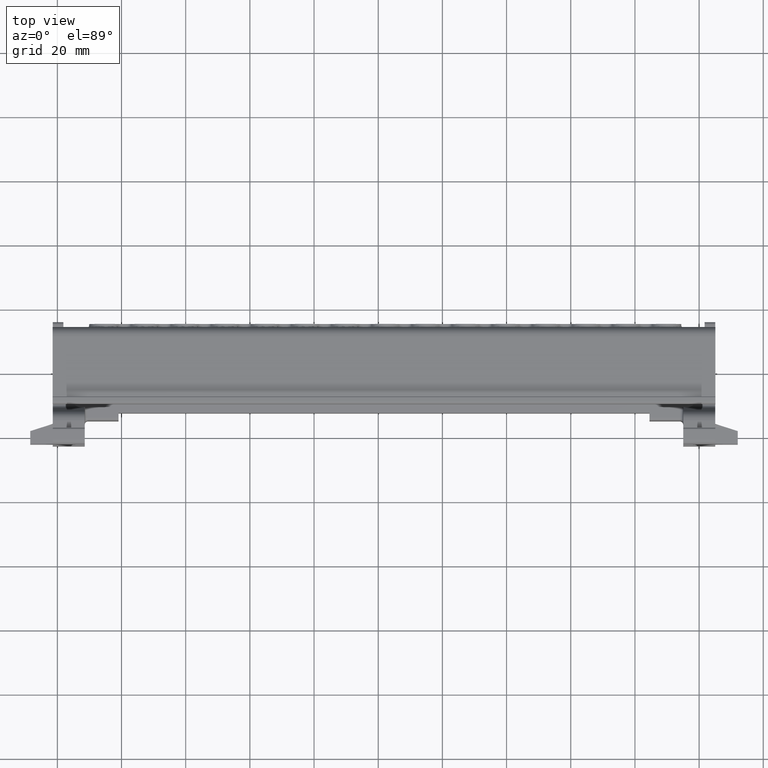
[diagram: clean part render]
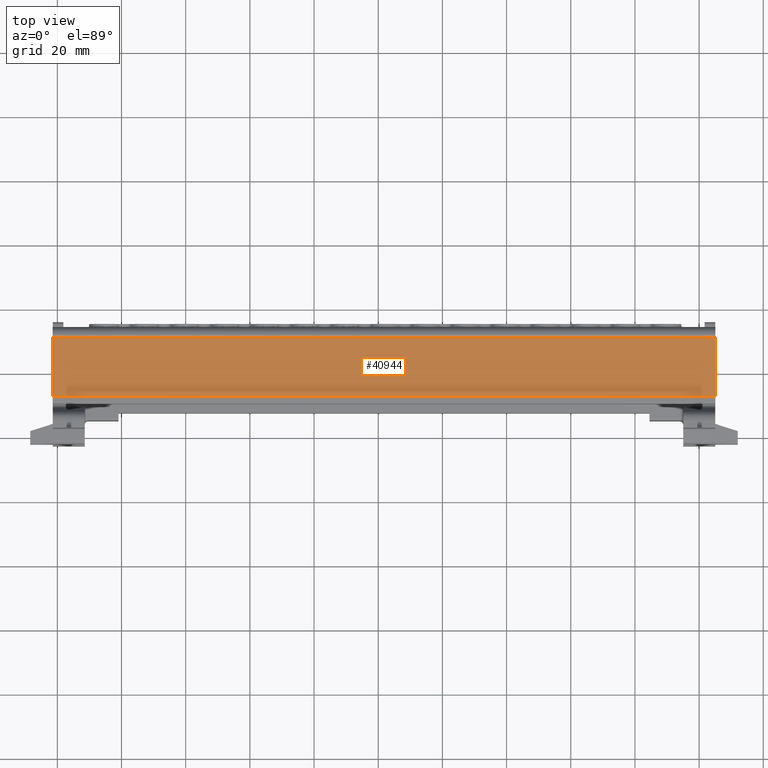
[diagram: same view with one face highlighted and labeled with its STEP entity id]
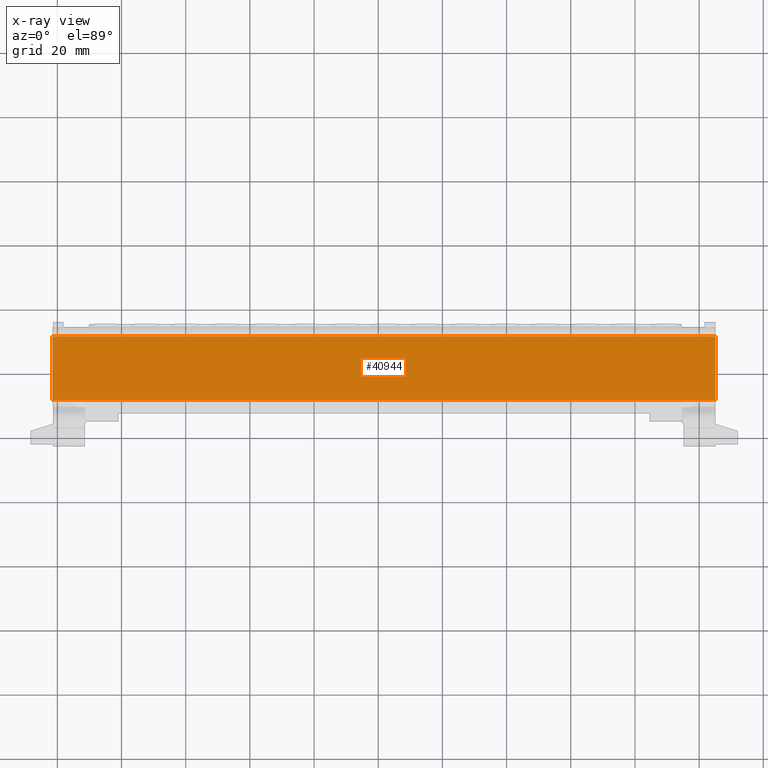
[diagram: x-ray of the same camera — body ghosted, the highlighted face saturated]
A machine part, top view. The second image highlights one B-rep face of the part: STEP entity #40944.
The next image is the same camera in x-ray: the body ghosted, the highlighted face saturated — about 0% of this face is hidden behind the body in this view.
In plain terms, the highlighted planar face has unit normal (-0, 0.0175, 0.9998).
Its self-contained STEP definition (entity closure, byte-faithful):
#1567 = VECTOR ( 'NONE', #36376, 1000.000000000000000 ) ;
#1578 = CARTESIAN_POINT ( 'NONE',  ( -121.2823042266779936, 71.26595597400199722, 47.07021635436680640 ) ) ;
#1595 = CARTESIAN_POINT ( 'NONE',  ( -121.2823042268895932, 62.90630485380530246, 47.21612950062409908 ) ) ;
#6143 = ORIENTED_EDGE ( 'NONE', *, *, #13471, .T. ) ;
#6907 = VECTOR ( 'NONE', #9906, 1000.000000000000000 ) ;
#6908 = VECTOR ( 'NONE', #18515, 1000.000000000000227 ) ;
#7884 = LINE ( 'NONE', #16350, #6907 ) ;
#8601 = CARTESIAN_POINT ( 'NONE',  ( -121.2823042271809868, 51.38448020008069506, 47.41723665948450162 ) ) ;
#9906 = DIRECTION ( 'NONE',  ( -1.000000000000000000, 7.965850241683890472E-15, 1.449706631854701921E-09 ) ) ;
#10512 = ORIENTED_EDGE ( 'NONE', *, *, #16750, .F. ) ;
#10874 = ORIENTED_EDGE ( 'NONE', *, *, #16700, .F. ) ;
#11130 = DIRECTION ( 'NONE',  ( 0.9999999999999965583, 8.305653621656391614E-08, 0.0000000000000000000 ) ) ;
#11708 = DIRECTION ( 'NONE',  ( 1.000000000000000000, -7.897574947184900316E-15, 1.449706631854835925E-09 ) ) ;
#12310 = AXIS2_PLACEMENT_3D ( 'NONE', #1595, #17699, #11130 ) ;
#13164 = CARTESIAN_POINT ( 'NONE',  ( 45.05155904785089405, 71.26595597400108772, 47.07021659550209591 ) ) ;
#13174 = EDGE_CURVE ( 'NONE', #34868, #18211, #35214, .T. ) ;
#13471 = EDGE_CURVE ( 'NONE', #15380, #39693, #18592, .T. ) ;
#14911 = CARTESIAN_POINT ( 'NONE',  ( 45.05155904734779426, 51.38448020007960082, 47.41723690061969876 ) ) ;
#15380 = VERTEX_POINT ( 'NONE', #32667 ) ;
#16350 = CARTESIAN_POINT ( 'NONE',  ( 6.606463685034439592, 51.38448020007960082, 47.41723665948450162 ) ) ;
#16700 = EDGE_CURVE ( 'NONE', #15380, #23552, #7884, .T. ) ;
#16750 = EDGE_CURVE ( 'NONE', #23552, #34868, #25449, .T. ) ;
#17699 = DIRECTION ( 'NONE',  ( -1.449485712137176047E-09, 0.01745179582685391431, 0.9998477058144494833 ) ) ;
#18211 = VERTEX_POINT ( 'NONE', #13164 ) ;
#18515 = DIRECTION ( 'NONE',  ( 2.530784658991835693E-11, 0.9998477058144493723, -0.01745179582685390737 ) ) ;
#18592 = LINE ( 'NONE', #8601, #28124 ) ;
#18866 = CARTESIAN_POINT ( 'NONE',  ( -161.4573995899974932, 71.26595597400270776, 47.07021659550209591 ) ) ;
#22261 = DIRECTION ( 'NONE',  ( -2.529198558063455786E-11, 0.9998477058144493723, -0.01745179582685390737 ) ) ;
#22424 = EDGE_CURVE ( 'NONE', #39693, #18211, #37566, .T. ) ;
#23304 = EDGE_LOOP ( 'NONE', ( #6143, #31113, #24633, #10512, #10874 ) ) ;
#23552 = VERTEX_POINT ( 'NONE', #33013 ) ;
#24633 = ORIENTED_EDGE ( 'NONE', *, *, #13174, .F. ) ;
#24846 = CARTESIAN_POINT ( 'NONE',  ( 45.05155904763909547, 62.90630485380441428, 47.21612974175940280 ) ) ;
#25449 = LINE ( 'NONE', #35185, #40564 ) ;
#28124 = VECTOR ( 'NONE', #11708, 1000.000000000000000 ) ;
#31113 = ORIENTED_EDGE ( 'NONE', *, *, #22424, .T. ) ;
#31692 = FACE_OUTER_BOUND ( 'NONE', #23304, .T. ) ;
#32667 = CARTESIAN_POINT ( 'NONE',  ( -57.81792027107329801, 51.38448019960610225, 47.41723675288919537 ) ) ;
#33013 = CARTESIAN_POINT ( 'NONE',  ( -161.4573995894944858, 51.38448020008129902, 47.41723690061969876 ) ) ;
#34868 = VERTEX_POINT ( 'NONE', #18866 ) ;
#35185 = CARTESIAN_POINT ( 'NONE',  ( -161.4573995897860073, 62.90630485380591352, 47.21612974175940280 ) ) ;
#35214 = LINE ( 'NONE', #1578, #1567 ) ;
#36376 = DIRECTION ( 'NONE',  ( 1.000000000000000000, -7.897574947184900316E-15, 1.449706631854835925E-09 ) ) ;
#37243 = PLANE ( 'NONE',  #12310 ) ;
#37566 = LINE ( 'NONE', #24846, #6908 ) ;
#39693 = VERTEX_POINT ( 'NONE', #14911 ) ;
#40564 = VECTOR ( 'NONE', #22261, 1000.000000000000227 ) ;
#40944 = ADVANCED_FACE ( 'NONE', ( #31692 ), #37243, .T. ) ;